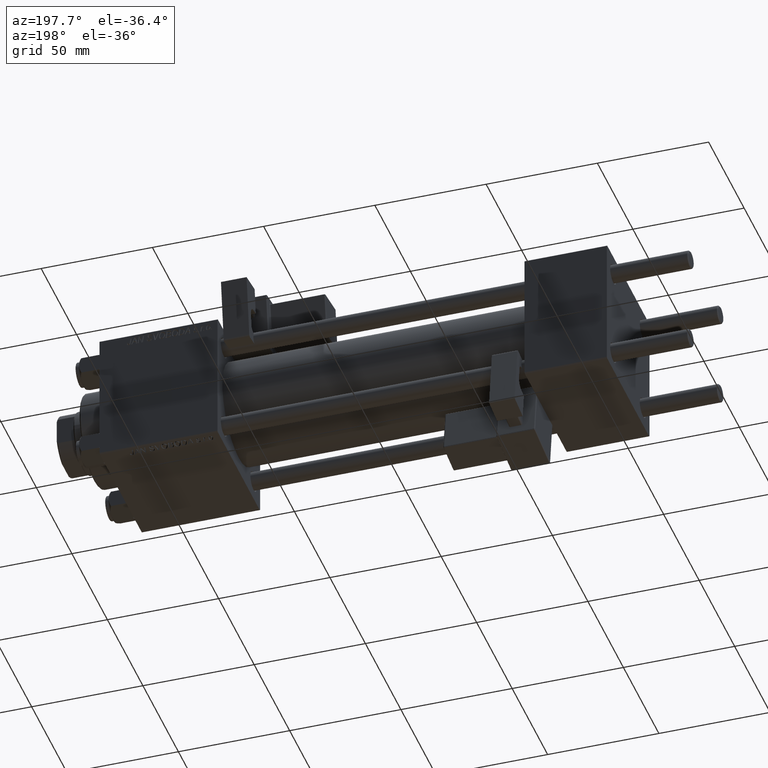
[diagram: clean part render]
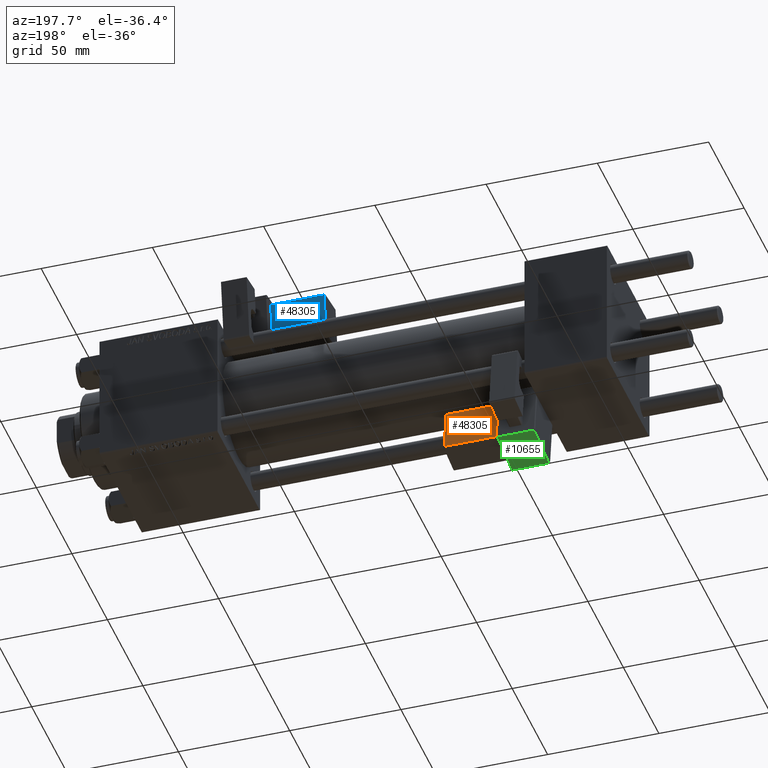
[diagram: same view with three faces highlighted in distinct colors, each labeled with its STEP entity id]
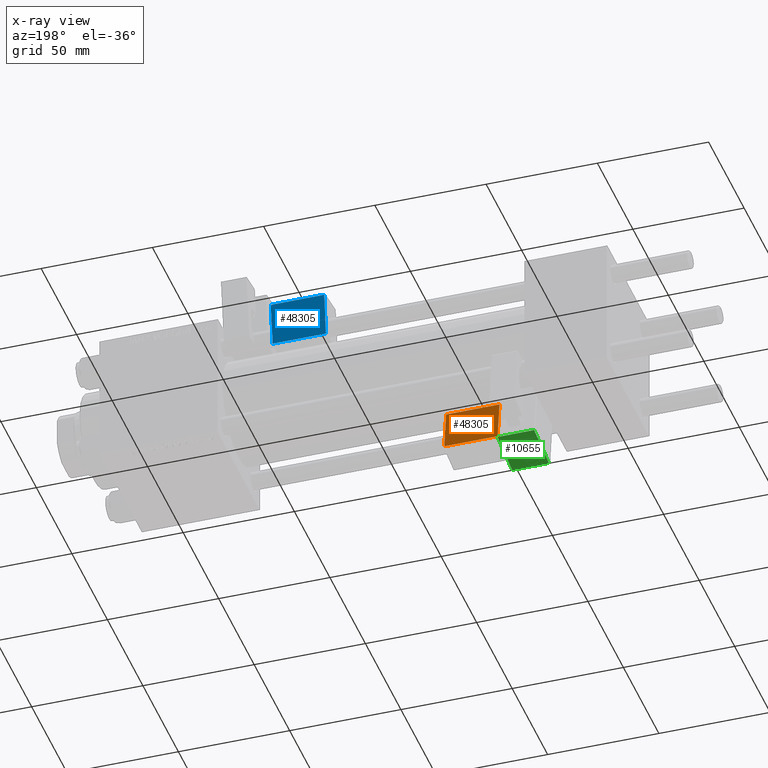
[diagram: x-ray of the same camera — body ghosted, the three highlighted faces saturated]
A machine part, auxiliary view with three faces highlighted in distinct colors.
The next image is the same camera in x-ray (body ghosted, the three faces saturated) — at least one of them is partly hidden behind the body in this view.
Their STEP definitions:

[orange] entity #48305 — the highlighted planar face has unit normal (-0, -0.9902, -0.1399).
#423 = CARTESIAN_POINT ( 'NONE',  ( 33.25000000000000000, -17.24999999999999289, 2.500000000000009326 ) ) ;
#2283 = VERTEX_POINT ( 'NONE', #29849 ) ;
#4631 = PLANE ( 'NONE',  #41225 ) ;
#4947 = ORIENTED_EDGE ( 'NONE', *, *, #40873, .T. ) ;
#6686 = CARTESIAN_POINT ( 'NONE',  ( 33.25000000000000000, -17.24999999999999289, 21.50000000000000711 ) ) ;
#7365 = DIRECTION ( 'NONE',  ( 0.000000000000000000, -0.000000000000000000, -1.000000000000000000 ) ) ;
#8460 = LINE ( 'NONE', #27979, #32814 ) ;
#10124 = ORIENTED_EDGE ( 'NONE', *, *, #41314, .T. ) ;
#10710 = VECTOR ( 'NONE', #50149, 1000.000000000000000 ) ;
#11234 = ORIENTED_EDGE ( 'NONE', *, *, #17745, .T. ) ;
#13808 = LINE ( 'NONE', #29367, #10710 ) ;
#16029 = CARTESIAN_POINT ( 'NONE',  ( 33.25000000000000000, -17.24999999999999289, 2.000000000000010214 ) ) ;
#17745 = EDGE_CURVE ( 'NONE', #2283, #22250, #50933, .T. ) ;
#21873 = VECTOR ( 'NONE', #31187, 1000.000000000000000 ) ;
#22250 = VERTEX_POINT ( 'NONE', #6686 ) ;
#23026 = CARTESIAN_POINT ( 'NONE',  ( 33.75000000000000000, -17.24999999999999289, 21.50000000000000711 ) ) ;
#24418 = DIRECTION ( 'NONE',  ( 0.000000000000000000, -1.000000000000000000, 0.000000000000000000 ) ) ;
#26964 = CARTESIAN_POINT ( 'NONE',  ( 9.250000000000005329, -17.24999999999999289, 2.500000000000005773 ) ) ;
#27979 = CARTESIAN_POINT ( 'NONE',  ( 33.75000000000000000, -17.24999999999999289, 2.500000000000009326 ) ) ;
#28657 = DIRECTION ( 'NONE',  ( 1.734723475976807587E-16, -0.000000000000000000, -1.000000000000000000 ) ) ;
#29367 = CARTESIAN_POINT ( 'NONE',  ( 9.250000000000001776, -17.24999999999999289, 22.00000000000000711 ) ) ;
#29849 = CARTESIAN_POINT ( 'NONE',  ( 9.250000000000001776, -17.24999999999999289, 21.50000000000000355 ) ) ;
#31187 = DIRECTION ( 'NONE',  ( 1.000000000000000000, -0.000000000000000000, 1.334402673828313339E-16 ) ) ;
#32814 = VECTOR ( 'NONE', #40081, 1000.000000000000000 ) ;
#33400 = VECTOR ( 'NONE', #28657, 1000.000000000000000 ) ;
#40081 = DIRECTION ( 'NONE',  ( -1.000000000000000000, 0.000000000000000000, -1.334402673828313339E-16 ) ) ;
#40873 = EDGE_CURVE ( 'NONE', #22250, #48241, #52097, .T. ) ;
#41225 = AXIS2_PLACEMENT_3D ( 'NONE', #45192, #24418, #7365 ) ;
#41314 = EDGE_CURVE ( 'NONE', #48771, #2283, #13808, .T. ) ;
#45192 = CARTESIAN_POINT ( 'NONE',  ( 33.75000000000000000, -17.24999999999999289, 22.00000000000001066 ) ) ;
#46592 = EDGE_LOOP ( 'NONE', ( #47868, #10124, #11234, #4947 ) ) ;
#47868 = ORIENTED_EDGE ( 'NONE', *, *, #48088, .T. ) ;
#48088 = EDGE_CURVE ( 'NONE', #48241, #48771, #8460, .T. ) ;
#48241 = VERTEX_POINT ( 'NONE', #423 ) ;
#48305 = ADVANCED_FACE ( 'NONE', ( #51348 ), #4631, .F. ) ;
#48771 = VERTEX_POINT ( 'NONE', #26964 ) ;
#50149 = DIRECTION ( 'NONE',  ( -1.334402673828313339E-16, 0.000000000000000000, 1.000000000000000000 ) ) ;
#50933 = LINE ( 'NONE', #23026, #21873 ) ;
#51348 = FACE_OUTER_BOUND ( 'NONE', #46592, .T. ) ;
#52097 = LINE ( 'NONE', #16029, #33400 ) ;

[blue] entity #48305 — the highlighted planar face has unit normal (0, -0.9908, 0.1355).
#423 = CARTESIAN_POINT ( 'NONE',  ( 33.25000000000000000, -17.24999999999999289, 2.500000000000009326 ) ) ;
#2283 = VERTEX_POINT ( 'NONE', #29849 ) ;
#4631 = PLANE ( 'NONE',  #41225 ) ;
#4947 = ORIENTED_EDGE ( 'NONE', *, *, #40873, .T. ) ;
#6686 = CARTESIAN_POINT ( 'NONE',  ( 33.25000000000000000, -17.24999999999999289, 21.50000000000000711 ) ) ;
#7365 = DIRECTION ( 'NONE',  ( 0.000000000000000000, -0.000000000000000000, -1.000000000000000000 ) ) ;
#8460 = LINE ( 'NONE', #27979, #32814 ) ;
#10124 = ORIENTED_EDGE ( 'NONE', *, *, #41314, .T. ) ;
#10710 = VECTOR ( 'NONE', #50149, 1000.000000000000000 ) ;
#11234 = ORIENTED_EDGE ( 'NONE', *, *, #17745, .T. ) ;
#13808 = LINE ( 'NONE', #29367, #10710 ) ;
#16029 = CARTESIAN_POINT ( 'NONE',  ( 33.25000000000000000, -17.24999999999999289, 2.000000000000010214 ) ) ;
#17745 = EDGE_CURVE ( 'NONE', #2283, #22250, #50933, .T. ) ;
#21873 = VECTOR ( 'NONE', #31187, 1000.000000000000000 ) ;
#22250 = VERTEX_POINT ( 'NONE', #6686 ) ;
#23026 = CARTESIAN_POINT ( 'NONE',  ( 33.75000000000000000, -17.24999999999999289, 21.50000000000000711 ) ) ;
#24418 = DIRECTION ( 'NONE',  ( 0.000000000000000000, -1.000000000000000000, 0.000000000000000000 ) ) ;
#26964 = CARTESIAN_POINT ( 'NONE',  ( 9.250000000000005329, -17.24999999999999289, 2.500000000000005773 ) ) ;
#27979 = CARTESIAN_POINT ( 'NONE',  ( 33.75000000000000000, -17.24999999999999289, 2.500000000000009326 ) ) ;
#28657 = DIRECTION ( 'NONE',  ( 1.734723475976807587E-16, -0.000000000000000000, -1.000000000000000000 ) ) ;
#29367 = CARTESIAN_POINT ( 'NONE',  ( 9.250000000000001776, -17.24999999999999289, 22.00000000000000711 ) ) ;
#29849 = CARTESIAN_POINT ( 'NONE',  ( 9.250000000000001776, -17.24999999999999289, 21.50000000000000355 ) ) ;
#31187 = DIRECTION ( 'NONE',  ( 1.000000000000000000, -0.000000000000000000, 1.334402673828313339E-16 ) ) ;
#32814 = VECTOR ( 'NONE', #40081, 1000.000000000000000 ) ;
#33400 = VECTOR ( 'NONE', #28657, 1000.000000000000000 ) ;
#40081 = DIRECTION ( 'NONE',  ( -1.000000000000000000, 0.000000000000000000, -1.334402673828313339E-16 ) ) ;
#40873 = EDGE_CURVE ( 'NONE', #22250, #48241, #52097, .T. ) ;
#41225 = AXIS2_PLACEMENT_3D ( 'NONE', #45192, #24418, #7365 ) ;
#41314 = EDGE_CURVE ( 'NONE', #48771, #2283, #13808, .T. ) ;
#45192 = CARTESIAN_POINT ( 'NONE',  ( 33.75000000000000000, -17.24999999999999289, 22.00000000000001066 ) ) ;
#46592 = EDGE_LOOP ( 'NONE', ( #47868, #10124, #11234, #4947 ) ) ;
#47868 = ORIENTED_EDGE ( 'NONE', *, *, #48088, .T. ) ;
#48088 = EDGE_CURVE ( 'NONE', #48241, #48771, #8460, .T. ) ;
#48241 = VERTEX_POINT ( 'NONE', #423 ) ;
#48305 = ADVANCED_FACE ( 'NONE', ( #51348 ), #4631, .F. ) ;
#48771 = VERTEX_POINT ( 'NONE', #26964 ) ;
#50149 = DIRECTION ( 'NONE',  ( -1.334402673828313339E-16, 0.000000000000000000, 1.000000000000000000 ) ) ;
#50933 = LINE ( 'NONE', #23026, #21873 ) ;
#51348 = FACE_OUTER_BOUND ( 'NONE', #46592, .T. ) ;
#52097 = LINE ( 'NONE', #16029, #33400 ) ;

[green] entity #10655 — the highlighted planar face has unit normal (-0, -0.1399, 0.9902).
#1179 = LINE ( 'NONE', #8297, #23894 ) ;
#2301 = DIRECTION ( 'NONE',  ( -0.000000000000000000, 1.000000000000000000, 0.000000000000000000 ) ) ;
#2821 = CARTESIAN_POINT ( 'NONE',  ( 8.750000000000003553, -14.24999999999999822, -1.000000000000000222 ) ) ;
#3254 = EDGE_LOOP ( 'NONE', ( #36016, #44136, #18699, #36600 ) ) ;
#3352 = EDGE_CURVE ( 'NONE', #46334, #29877, #26290, .T. ) ;
#3423 = EDGE_CURVE ( 'NONE', #22728, #46334, #5728, .T. ) ;
#4406 = CARTESIAN_POINT ( 'NONE',  ( 8.250000000000003553, -14.24999999999999822, -1.000000000000000222 ) ) ;
#5728 = LINE ( 'NONE', #51012, #24822 ) ;
#8297 = CARTESIAN_POINT ( 'NONE',  ( 8.250000000000003553, -35.75000000000000000, -1.000000000000000222 ) ) ;
#10046 = DIRECTION ( 'NONE',  ( 0.000000000000000000, 0.000000000000000000, 1.000000000000000000 ) ) ;
#10308 = FACE_OUTER_BOUND ( 'NONE', #3254, .T. ) ;
#10655 = ADVANCED_FACE ( 'NONE', ( #10308 ), #21661, .F. ) ;
#18138 = DIRECTION ( 'NONE',  ( -1.000000000000000000, -0.000000000000000000, 0.000000000000000000 ) ) ;
#18699 = ORIENTED_EDGE ( 'NONE', *, *, #23339, .T. ) ;
#21661 = PLANE ( 'NONE',  #31718 ) ;
#21804 = CARTESIAN_POINT ( 'NONE',  ( -8.250000000000003553, -14.24999999999999822, -1.000000000000000222 ) ) ;
#22728 = VERTEX_POINT ( 'NONE', #28641 ) ;
#23125 = VECTOR ( 'NONE', #46809, 1000.000000000000000 ) ;
#23339 = EDGE_CURVE ( 'NONE', #39150, #22728, #26051, .T. ) ;
#23894 = VECTOR ( 'NONE', #40685, 1000.000000000000000 ) ;
#24822 = VECTOR ( 'NONE', #2301, 1000.000000000000000 ) ;
#26051 = LINE ( 'NONE', #42362, #50542 ) ;
#26290 = LINE ( 'NONE', #2821, #23125 ) ;
#28641 = CARTESIAN_POINT ( 'NONE',  ( -8.250000000000003553, -35.25000000000000000, -1.000000000000000222 ) ) ;
#29877 = VERTEX_POINT ( 'NONE', #4406 ) ;
#31114 = EDGE_CURVE ( 'NONE', #29877, #39150, #1179, .T. ) ;
#31718 = AXIS2_PLACEMENT_3D ( 'NONE', #50337, #10046, #37713 ) ;
#36016 = ORIENTED_EDGE ( 'NONE', *, *, #3352, .T. ) ;
#36413 = CARTESIAN_POINT ( 'NONE',  ( 8.250000000000003553, -35.25000000000000000, -1.000000000000000222 ) ) ;
#36600 = ORIENTED_EDGE ( 'NONE', *, *, #3423, .T. ) ;
#37713 = DIRECTION ( 'NONE',  ( 1.000000000000000000, 0.000000000000000000, -0.000000000000000000 ) ) ;
#39150 = VERTEX_POINT ( 'NONE', #36413 ) ;
#40685 = DIRECTION ( 'NONE',  ( -0.000000000000000000, -1.000000000000000000, -0.000000000000000000 ) ) ;
#42362 = CARTESIAN_POINT ( 'NONE',  ( 8.750000000000003553, -35.25000000000000000, -1.000000000000000222 ) ) ;
#44136 = ORIENTED_EDGE ( 'NONE', *, *, #31114, .T. ) ;
#46334 = VERTEX_POINT ( 'NONE', #21804 ) ;
#46809 = DIRECTION ( 'NONE',  ( 1.000000000000000000, -0.000000000000000000, 0.000000000000000000 ) ) ;
#50337 = CARTESIAN_POINT ( 'NONE',  ( 8.750000000000003553, -35.75000000000000000, -1.000000000000000222 ) ) ;
#50542 = VECTOR ( 'NONE', #18138, 1000.000000000000000 ) ;
#51012 = CARTESIAN_POINT ( 'NONE',  ( -8.250000000000003553, -35.75000000000000000, -1.000000000000000222 ) ) ;